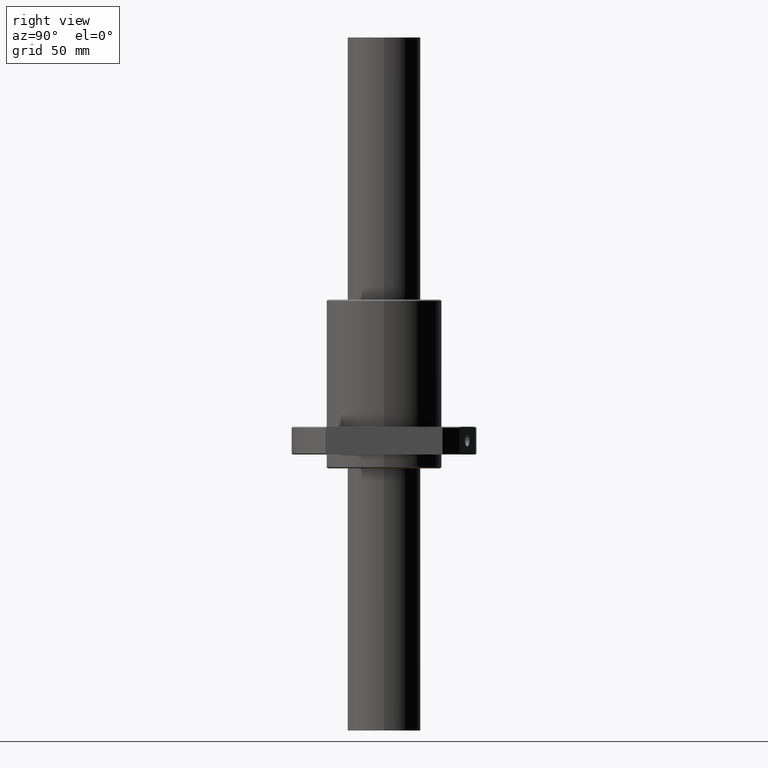
[diagram: clean part render]
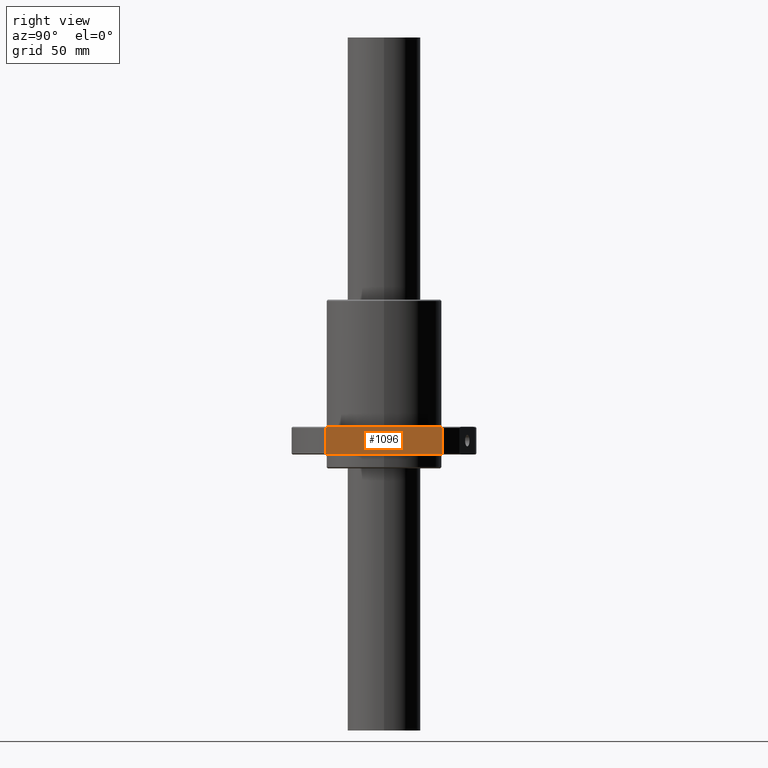
[diagram: same view with one face highlighted and labeled with its STEP entity id]
A machine part, right view. The second image highlights one B-rep face of the part: STEP entity #1096.
In plain terms, the highlighted planar face has unit normal (1, 0, 0).
Its self-contained STEP definition (entity closure, byte-faithful):
#37 = EDGE_CURVE ( 'NONE', #818, #989, #304, .T. ) ;
#44 = LINE ( 'NONE', #218, #1116 ) ;
#63 = EDGE_CURVE ( 'NONE', #989, #1510, #44, .T. ) ;
#139 = CARTESIAN_POINT ( 'NONE',  ( -31.00000010000000100, -25.27844919699999700, -11.99999399999999900 ) ) ;
#158 = ORIENTED_EDGE ( 'NONE', *, *, #1798, .T. ) ;
#182 = EDGE_CURVE ( 'NONE', #1104, #1187, #994, .T. ) ;
#218 = CARTESIAN_POINT ( 'NONE',  ( -31.00000010000000100, 0.0000000000000000000, -17.99999400000000100 ) ) ;
#250 = DIRECTION ( 'NONE',  ( -0.0000000000000000000, -1.000000000000000000, -0.0000000000000000000 ) ) ;
#260 = CARTESIAN_POINT ( 'NONE',  ( -31.00000010000000100, -25.27844919694748400, -6.417146550033200100 ) ) ;
#277 = CARTESIAN_POINT ( 'NONE',  ( -31.00000010000000100, -25.27844919694748400, -6.417146550033200100 ) ) ;
#299 = DIRECTION ( 'NONE',  ( 0.0000000000000000000, 0.0000000000000000000, 1.000000000000000000 ) ) ;
#304 = B_SPLINE_CURVE_WITH_KNOTS ( 'NONE', 3,
 ( #661, #837, #1023, #1208 ),
 .UNSPECIFIED., .F., .F.,
 ( 4, 4 ),
 ( 1.240435750966736300E-012, 0.0007853558456428895400 ),
 .UNSPECIFIED. ) ;
#305 = VERTEX_POINT ( 'NONE', #260 ) ;
#331 = EDGE_LOOP ( 'NONE', ( #1699, #380, #895, #1431, #508, #1842, #158, #1593 ) ) ;
#366 = VECTOR ( 'NONE', #299, 1000.000000000000000 ) ;
#380 = ORIENTED_EDGE ( 'NONE', *, *, #1817, .T. ) ;
#454 = CARTESIAN_POINT ( 'NONE',  ( -31.00000010000000100, -24.61304137860817300, -5.999993998169761000 ) ) ;
#508 = ORIENTED_EDGE ( 'NONE', *, *, #1737, .T. ) ;
#510 = CARTESIAN_POINT ( 'NONE',  ( -31.00000010000000100, -24.61304137688813400, -17.99999400289977900 ) ) ;
#532 = CARTESIAN_POINT ( 'NONE',  ( -31.00000010000000100, 24.61304137799157800, -5.999993997786353900 ) ) ;
#546 = B_SPLINE_CURVE_WITH_KNOTS ( 'NONE', 3,
 ( #532, #713, #889, #1071 ),
 .UNSPECIFIED., .F., .F.,
 ( 4, 4 ),
 ( 4.192085718337464200E-012, 0.0007853558548276667200 ),
 .UNSPECIFIED. ) ;
#551 = B_SPLINE_CURVE_WITH_KNOTS ( 'NONE', 3,
 ( #510, #678, #857, #1043 ),
 .UNSPECIFIED., .F., .F.,
 ( 4, 4 ),
 ( 5.486430173301180400E-012, 0.0007853558555500871100 ),
 .UNSPECIFIED. ) ;
#564 = CARTESIAN_POINT ( 'NONE',  ( -31.00000010315471500, 25.27844919302621600, -6.417146550000015100 ) ) ;
#620 = CARTESIAN_POINT ( 'NONE',  ( -31.00000010000000100, -24.61304137688813400, -17.99999400289977900 ) ) ;
#632 = CARTESIAN_POINT ( 'NONE',  ( -31.00000010000000100, -25.05715084886657700, -6.277294573786989900 ) ) ;
#653 = CARTESIAN_POINT ( 'NONE',  ( -31.00000010000000100, 25.27844919699999700, -17.99999400000000100 ) ) ;
#661 = CARTESIAN_POINT ( 'NONE',  ( -31.00000010315471500, 25.27844919130082600, -17.58284145109037800 ) ) ;
#678 = CARTESIAN_POINT ( 'NONE',  ( -31.00000009745110700, -24.83535291543461200, -17.86175828937952300 ) ) ;
#713 = CARTESIAN_POINT ( 'NONE',  ( -31.00000010000000100, 24.83535291945069900, -6.138229711512367200 ) ) ;
#758 = VERTEX_POINT ( 'NONE', #564 ) ;
#762 = CARTESIAN_POINT ( 'NONE',  ( -31.00000010000000100, 0.0000000000000000000, -5.999994000000000000 ) ) ;
#798 = CARTESIAN_POINT ( 'NONE',  ( -31.00000010000000100, -24.83535292123522700, -6.138229712626253900 ) ) ;
#818 = VERTEX_POINT ( 'NONE', #970 ) ;
#837 = CARTESIAN_POINT ( 'NONE',  ( -31.00000010184157500, 25.05715084281195700, -17.72269343118856000 ) ) ;
#847 = LINE ( 'NONE', #1033, #1637 ) ;
#857 = CARTESIAN_POINT ( 'NONE',  ( -31.00000010000000100, -25.05715084216374700, -17.72269343042127700 ) ) ;
#889 = CARTESIAN_POINT ( 'NONE',  ( -31.00000010000000100, 25.05715084653323300, -6.277294572321974200 ) ) ;
#895 = ORIENTED_EDGE ( 'NONE', *, *, #37, .T. ) ;
#917 = CARTESIAN_POINT ( 'NONE',  ( -31.00000010000000100, -25.27844919477107100, -17.58284145137546500 ) ) ;
#953 = LINE ( 'NONE', #139, #366 ) ;
#962 = VERTEX_POINT ( 'NONE', #917 ) ;
#970 = CARTESIAN_POINT ( 'NONE',  ( -31.00000010315471500, 25.27844919130082600, -17.58284145109037800 ) ) ;
#982 = CARTESIAN_POINT ( 'NONE',  ( -31.00000010000000100, -24.61304137860817300, -5.999993998169761000 ) ) ;
#989 = VERTEX_POINT ( 'NONE', #1054 ) ;
#994 = LINE ( 'NONE', #762, #1324 ) ;
#1013 = DIRECTION ( 'NONE',  ( -1.000000000000000000, 0.0000000000000000000, 0.0000000000000000000 ) ) ;
#1023 = CARTESIAN_POINT ( 'NONE',  ( -31.00000010000000100, 24.83535291549574400, -17.86175829095947500 ) ) ;
#1033 = CARTESIAN_POINT ( 'NONE',  ( -31.00000010630942900, 25.27844918915746300, -11.99999399999999900 ) ) ;
#1043 = CARTESIAN_POINT ( 'NONE',  ( -31.00000010000000100, -25.27844919477107100, -17.58284145137546500 ) ) ;
#1054 = CARTESIAN_POINT ( 'NONE',  ( -31.00000010000000100, 24.61304138155157900, -17.99999400000000100 ) ) ;
#1071 = CARTESIAN_POINT ( 'NONE',  ( -31.00000010315471500, 25.27844919302621600, -6.417146550000015100 ) ) ;
#1096 = ADVANCED_FACE ( 'NONE', ( #1559 ), #1614, .T. ) ;
#1104 = VERTEX_POINT ( 'NONE', #454 ) ;
#1116 = VECTOR ( 'NONE', #250, 1000.000000000000000 ) ;
#1187 = VERTEX_POINT ( 'NONE', #1485 ) ;
#1208 = CARTESIAN_POINT ( 'NONE',  ( -31.00000010000000100, 24.61304138155157900, -17.99999400000000100 ) ) ;
#1215 = DIRECTION ( 'NONE',  ( -0.0000000000000000000, -0.0000000000000000000, -1.000000000000000000 ) ) ;
#1322 = DIRECTION ( 'NONE',  ( 0.0000000000000000000, -1.000000000000000000, 0.0000000000000000000 ) ) ;
#1324 = VECTOR ( 'NONE', #1338, 1000.000000000000000 ) ;
#1338 = DIRECTION ( 'NONE',  ( 0.0000000000000000000, 1.000000000000000000, 0.0000000000000000000 ) ) ;
#1431 = ORIENTED_EDGE ( 'NONE', *, *, #63, .T. ) ;
#1485 = CARTESIAN_POINT ( 'NONE',  ( -31.00000010000000100, 24.61304137799157800, -5.999993997786353900 ) ) ;
#1510 = VERTEX_POINT ( 'NONE', #620 ) ;
#1559 = FACE_OUTER_BOUND ( 'NONE', #331, .T. ) ;
#1593 = ORIENTED_EDGE ( 'NONE', *, *, #182, .T. ) ;
#1606 = EDGE_CURVE ( 'NONE', #962, #305, #953, .T. ) ;
#1614 = PLANE ( 'NONE',  #1812 ) ;
#1633 = B_SPLINE_CURVE_WITH_KNOTS ( 'NONE', 3,
 ( #277, #632, #798, #982 ),
 .UNSPECIFIED., .F., .F.,
 ( 4, 4 ),
 ( 4.637209921758899300E-012, 0.0007853558578867151800 ),
 .UNSPECIFIED. ) ;
#1637 = VECTOR ( 'NONE', #1215, 1000.000000000000000 ) ;
#1699 = ORIENTED_EDGE ( 'NONE', *, *, #1831, .T. ) ;
#1737 = EDGE_CURVE ( 'NONE', #1510, #962, #551, .T. ) ;
#1798 = EDGE_CURVE ( 'NONE', #305, #1104, #1633, .T. ) ;
#1812 = AXIS2_PLACEMENT_3D ( 'NONE', #653, #1013, #1322 ) ;
#1817 = EDGE_CURVE ( 'NONE', #758, #818, #847, .T. ) ;
#1831 = EDGE_CURVE ( 'NONE', #1187, #758, #546, .T. ) ;
#1842 = ORIENTED_EDGE ( 'NONE', *, *, #1606, .T. ) ;